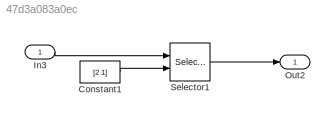
MODEL slx_47d3a083a0ec
KIND model
CONFIG AbsTol = auto
CONFIG EnableMultiTasking = on
CONFIG FixedStep = 0.1
CONFIG MaxStep = 1
CONFIG MinStep = auto
CONFIG RelTol = 1e-3
CONFIG SampleTimeConstraint = Unconstrained
CONFIG Solver = FixedStepAuto
CONFIG SolverName = FixedStepAuto
CONFIG StartTime = 0.0
CONFIG StopTime = 0
BLOCK [Constant] Constant1
  Value = [2 1]
BLOCK [Inport] In3
  IconDisplay = Port number
  PortDimensions = [2 3]
BLOCK [Outport] Out2
  IconDisplay = Port number
BLOCK [Selector] Selector1
  IndexOptions = Index vector (port),Index vector (dialog)
  Indices = [2 1],1
  InputPortWidth = 3
  NumberOfDimensions = 2
  OutputSizes = 1,2
  Ports = [2, 1]
LINE Constant1:1 -> Selector1:2
LINE In3:1 -> Selector1:1
LINE Selector1:1 -> Out2:1
